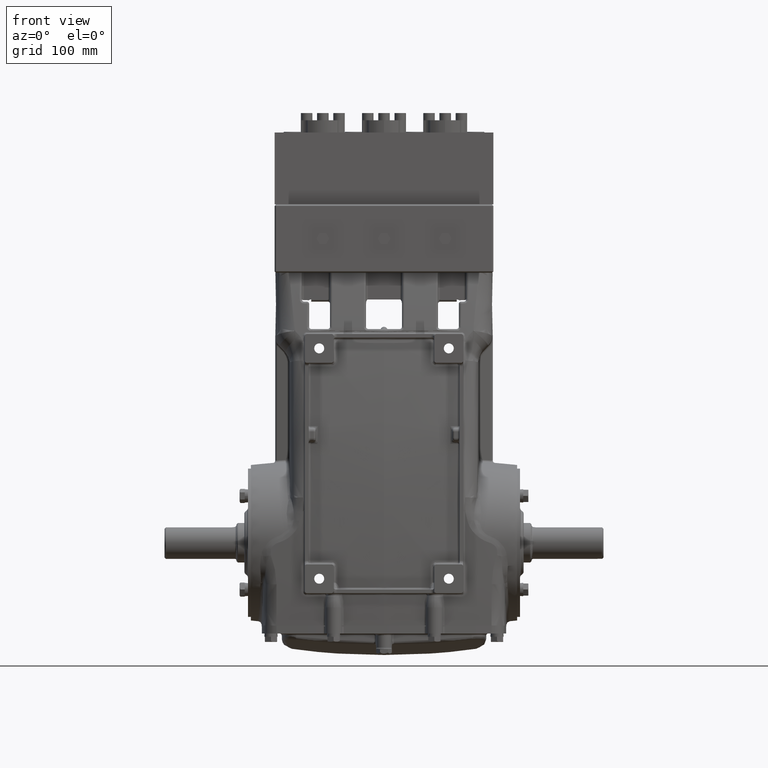
[diagram: clean part render]
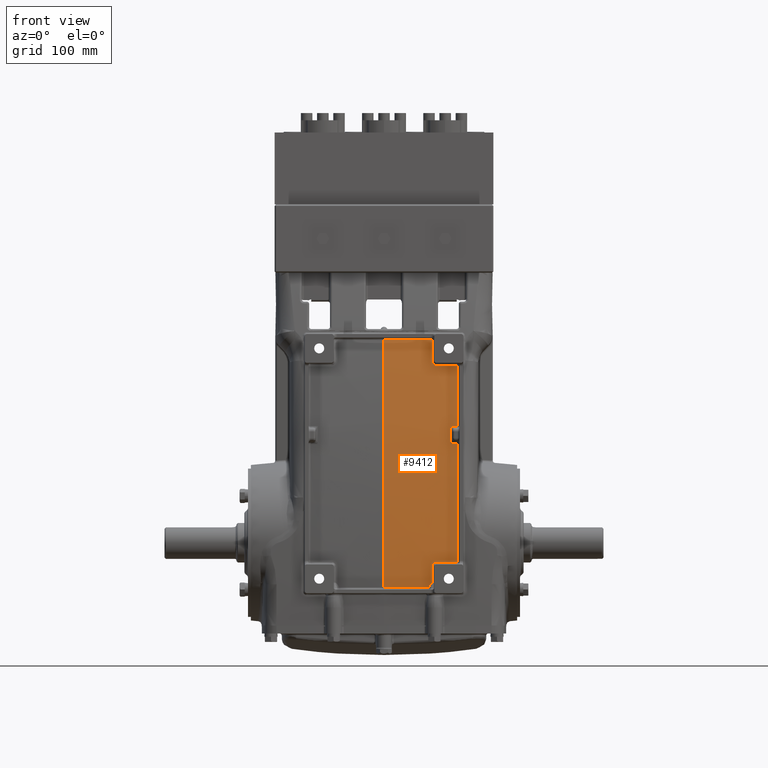
[diagram: same view with one face highlighted and labeled with its STEP entity id]
A machine part, front view. The second image highlights one B-rep face of the part: STEP entity #9412.
In plain terms, the highlighted face is a freeform B-spline surface patch.
Its self-contained STEP definition (entity closure, byte-faithful):
#142 = CARTESIAN_POINT ( 'NONE',  ( 1.338022688523618386, -4.335583564402649692, 8.422581710757242490 ) ) ;
#395 = CARTESIAN_POINT ( 'NONE',  ( 2.869235462077895704, -4.616673264439084434, -1.063256936052564772 ) ) ;
#548 = CARTESIAN_POINT ( 'NONE',  ( 6.225699120453859869, -4.603769284748519652, 1.943166230203460909 ) ) ;
#962 = CARTESIAN_POINT ( 'NONE',  ( 0.7394822644501427567, -4.598277018757071843, -4.656973560824539504 ) ) ;
#1262 = CARTESIAN_POINT ( 'NONE',  ( 1.756019466418914821, -3.688288809523445622, 11.08388144345502546 ) ) ;
#1490 = CARTESIAN_POINT ( 'NONE',  ( 4.009087921353016171, -4.326285157352316446, 4.865810634977489002 ) ) ;
#1750 = EDGE_LOOP ( 'NONE', ( #9540, #69726, #47259, #56230, #26132, #18172, #7437, #49219, #10992, #10947, #79254, #41552, #32938, #48719, #4593 ) ) ;
#2588 = CARTESIAN_POINT ( 'NONE',  ( 5.952186459334057860E-15, -4.603595011519804103, -4.592266307971328843 ) ) ;
#2925 = CARTESIAN_POINT ( 'NONE',  ( 2.500623379743942998, -4.623138100157921926, -2.342764431144773951 ) ) ;
#3254 = VERTEX_POINT ( 'NONE', #34791 ) ;
#3327 = CARTESIAN_POINT ( 'NONE',  ( 3.878103101087254867, -4.198766236469249513, 6.386215845647989831 ) ) ;
#3487 = CARTESIAN_POINT ( 'NONE',  ( 2.641241897834023522, -3.836150706242198005, 9.883250370688323017 ) ) ;
#3708 = CARTESIAN_POINT ( 'NONE',  ( 2.713445904319685908, -4.622922570484267801, -1.121384847322080436 ) ) ;
#3899 = CARTESIAN_POINT ( 'NONE',  ( 2.664278630473030596, -3.843399480132904777, 9.826262832668120950 ) ) ;
#3907 = CARTESIAN_POINT ( 'NONE',  ( 6.805403164105268132, -4.550193385702355542, 1.943166230203468459 ) ) ;
#4430 = CARTESIAN_POINT ( 'NONE',  ( 2.633454653369547316, -3.773182203592455153, 10.32429064678720287 ) ) ;
#4593 = ORIENTED_EDGE ( 'NONE', *, *, #39601, .F. ) ;
#4731 = CARTESIAN_POINT ( 'NONE',  ( 10.04577710926009182, -3.882543138254359150, -4.721680813677759936 ) ) ;
#5129 = CARTESIAN_POINT ( 'NONE',  ( 2.838203157779700447, -3.853123549072879683, 9.709538004407617606 ) ) ;
#5135 = CARTESIAN_POINT ( 'NONE',  ( 10.04577710926009182, -3.887951540411600959, -4.592266307971328843 ) ) ;
#5523 = CARTESIAN_POINT ( 'NONE',  ( 7.549915708541110604, -4.204068552081169585, -4.527559055118101305 ) ) ;
#5854 = EDGE_CURVE ( 'NONE', #32884, #3254, #16579, .T. ) ;
#5927 = CARTESIAN_POINT ( 'NONE',  ( 6.244892509886193821, -4.326280182861818702, -4.656973560824554603 ) ) ;
#6102 = EDGE_CURVE ( 'NONE', #32610, #60613, #9541, .T. ) ;
#6350 = CARTESIAN_POINT ( 'NONE',  ( 3.677514481449129846, -4.507195010719162731, -4.656973560824575031 ) ) ;
#6749 = CARTESIAN_POINT ( 'NONE',  ( 5.413657530452238298, -4.398266217006079337, -4.592266307971348382 ) ) ;
#7163 = CARTESIAN_POINT ( 'NONE',  ( 0.7399819118763637515, -4.603681021773706306, -4.527559055118107523 ) ) ;
#7437 = ORIENTED_EDGE ( 'NONE', *, *, #54142, .F. ) ;
#7477 = CARTESIAN_POINT ( 'NONE',  ( 2.633461050662142977, -3.655664824017160974, 11.08388957593362711 ) ) ;
#7913 = CARTESIAN_POINT ( 'NONE',  ( 2.586632401729381137, -4.621654160764756547, -2.220136445856032648 ) ) ;
#8325 = CARTESIAN_POINT ( 'NONE',  ( 2.595409234286698119, -4.621463490786902106, -2.209614886988585436 ) ) ;
#9412 = ADVANCED_FACE ( 'NONE', ( #67129 ), #14173, .T. ) ;
#9540 = ORIENTED_EDGE ( 'NONE', *, *, #5854, .F. ) ;
#9541 = B_SPLINE_CURVE_WITH_KNOTS ( 'NONE', 3,
 ( #73724, #41902, #72898, #67122, #3487, #29094, #54711, #34884, #3899, #54295, #42710, #10943, #11345, #36528, #22898, #73311, #61734, #48924, #74122, #5129, #16729, #80333 ),
 .UNSPECIFIED., .F., .F.,
 ( 4, 2, 2, 2, 2, 2, 2, 2, 2, 2, 4 ),
 ( 0.000000000000000000, 0.001174131697665091630, 0.001761197546497641564, 0.002348263395330191499, 0.003522395092995463540, 0.004696526790660735147, 0.005870658488326007188, 0.006457724337158620223, 0.007044790185991232391, 0.008218921883656457594, 0.009393053581321683665 ),
 .UNSPECIFIED. ) ;
#9915 = CARTESIAN_POINT ( 'NONE',  ( 2.853669760522056009, -4.617303774662096849, -1.063256940650804117 ) ) ;
#10122 = CARTESIAN_POINT ( 'NONE',  ( 7.448906861072648766, -2.639979940783716561, 14.76377952755903600 ) ) ;
#10325 = CARTESIAN_POINT ( 'NONE',  ( 3.616044454389348850, -4.301933441501103239, 5.403433961941422226 ) ) ;
#10528 = CARTESIAN_POINT ( 'NONE',  ( 8.780860917755495265, -4.055481629005462274, -4.656973560824543945 ) ) ;
#10677 = CARTESIAN_POINT ( 'NONE',  ( 2.449077410714803449, -4.623510098356429232, -2.439147228008068602 ) ) ;
#10943 = CARTESIAN_POINT ( 'NONE',  ( 2.712919804652293099, -3.849994944742353820, 9.766627177032775720 ) ) ;
#10947 = ORIENTED_EDGE ( 'NONE', *, *, #37196, .F. ) ;
#10949 = CARTESIAN_POINT ( 'NONE',  ( 7.550589100857566294, -4.198588719668536307, -4.656973560824532399 ) ) ;
#10992 = ORIENTED_EDGE ( 'NONE', *, *, #54761, .F. ) ;
#11345 = CARTESIAN_POINT ( 'NONE',  ( 2.724775699095790316, -3.850923477165796083, 9.756821694830732028 ) ) ;
#11749 = CARTESIAN_POINT ( 'NONE',  ( 9.795701932413749091, -3.667955543504810123, 8.422581710757242490 ) ) ;
#11844 = B_SPLINE_CURVE_WITH_KNOTS ( 'NONE', 3,
 ( #80742, #36130, #60929, #48547 ),
 .UNSPECIFIED., .F., .F.,
 ( 4, 4 ),
 ( 0.000000000000000000, 1.000000000000000000 ),
 .UNSPECIFIED. ) ;
#12051 = B_SPLINE_CURVE_WITH_KNOTS ( 'NONE', 3,
 ( #79758, #3327, #72337, #28935 ),
 .UNSPECIFIED., .F., .F.,
 ( 4, 4 ),
 ( 1.947840340079970283E-16, 0.009997897390823021896 ),
 .UNSPECIFIED. ) ;
#12150 = CARTESIAN_POINT ( 'NONE',  ( 0.2620379937659005343, -4.606299212598425008, -4.527559055118111964 ) ) ;
#12353 = CARTESIAN_POINT ( 'NONE',  ( 4.009067684533873965, -4.561309355163068346, -1.063256557448129414 ) ) ;
#12550 = CARTESIAN_POINT ( 'NONE',  ( 2.707814507814531257, -4.549410571035791051, -4.721680813677759048 ) ) ;
#12763 = CARTESIAN_POINT ( 'NONE',  ( 3.878095849180120069, -4.288184763484342632, 5.403435864250364595 ) ) ;
#12969 = CARTESIAN_POINT ( 'NONE',  ( 6.833064749036533492, -4.271718344480565754, -4.656973560824541281 ) ) ;
#13363 = CARTESIAN_POINT ( 'NONE',  ( 4.649375982716229316, -4.726046614213196939, 1.943166230203471567 ) ) ;
#13768 = CARTESIAN_POINT ( 'NONE',  ( 1.271245932491347874, -4.589915476206400946, -4.656973560824534175 ) ) ;
#13959 = CARTESIAN_POINT ( 'NONE',  ( 2.869235462077895704, -4.616673264439084434, -1.063256936052564772 ) ) ;
#14173 = B_SPLINE_SURFACE_WITH_KNOTS ( 'NONE', 3, 3, ( 
 ( #61740, #61330, #22494, #22903, #5135, #73318, #4731 ),
 ( #55140, #11749, #30323, #29513, #36919, #80338, #54716 ),
 ( #80736, #60506, #79929, #23329, #48931, #24127, #53895 ),
 ( #74125, #17538, #49331, #74526, #42713, #10528, #48540 ),
 ( #48114, #17948, #42312, #73729, #66719, #17140, #68349 ),
 ( #10122, #43120, #67534, #5523, #41485, #10949, #79088 ),
 ( #47706, #35315, #3907, #74939, #81137, #12969, #24542 ),
 ( #50549, #69134, #548, #19155, #50143, #5927, #31134 ),
 ( #24933, #51364, #25754, #37736, #6749, #62953, #38951 ),
 ( #56339, #75337, #13363, #38141, #44752, #32345, #18350 ),
 ( #62538, #81541, #50954, #69954, #18744, #6350, #63356 ),
 ( #57564, #37320, #31942, #76156, #43922, #19569, #12550 ),
 ( #19969, #45162, #57147, #75741, #31546, #56733, #55922 ),
 ( #70366, #142, #25342, #44341, #43520, #13768, #76553 ),
 ( #38539, #63757, #69551, #7163, #68735, #962, #26165 ),
 ( #49748, #64170, #30725, #12150, #58386, #65801, #28192 ),
 ( #21590, #77366, #76960, #46795, #2588, #57967, #33162 ) ),
 .UNSPECIFIED., .F., .F., .F.,
 ( 4, 1, 1, 1, 1, 1, 1, 1, 1, 1, 1, 1, 1, 1, 4 ),
 ( 4, 3, 4 ),
 ( 0.6416899016319266291, 0.6680709144412995126, 0.6910511929030633826, 0.7070270417424607823, 0.7380269954074184513, 0.7537315596691966935, 0.7829012457735833319, 0.7996549019161131033, 0.8403417066807266078, 0.8632468234832121334, 0.8997714546634835164, 0.9419247260028263957, 0.9467756368356592400, 0.9704551915184829181, 1.000000000000000000 ),
 ( 0.000000000000000000, 1.000000000000000000, 1.010000000000000009 ),
 .UNSPECIFIED. ) ;
#15127 = CARTESIAN_POINT ( 'NONE',  ( 2.633408173276915676, -4.626008312478406381, -1.299123915918647620 ) ) ;
#15297 = VERTEX_POINT ( 'NONE', #10325 ) ;
#15706 = EDGE_CURVE ( 'NONE', #60613, #32884, #31455, .T. ) ;
#16525 = CARTESIAN_POINT ( 'NONE',  ( 2.634936377767680415, -4.625970219346760004, -1.268135836703963459 ) ) ;
#16579 = B_SPLINE_CURVE_WITH_KNOTS ( 'NONE', 3,
 ( #24217, #47796, #41169, #66398 ),
 .UNSPECIFIED., .F., .F.,
 ( 4, 4 ),
 ( 0.000000000000000000, 0.08500869428581235565 ),
 .UNSPECIFIED. ) ;
#16729 = CARTESIAN_POINT ( 'NONE',  ( 2.853661428704624470, -3.852718271660905192, 9.708001154008286449 ) ) ;
#16966 = EDGE_CURVE ( 'NONE', #59864, #32610, #52075, .T. ) ;
#17140 = CARTESIAN_POINT ( 'NONE',  ( 8.136625690299220892, -4.133296123846644576, -4.656973560824535063 ) ) ;
#17538 = CARTESIAN_POINT ( 'NONE',  ( 8.718250130616125304, -3.810182812353625881, 8.422581710757270912 ) ) ;
#17655 = B_SPLINE_CURVE_WITH_KNOTS ( 'NONE', 3,
 ( #35926, #9915, #54094, #52879, #60711, #35104, #35520, #22696, #60307, #46690, #3708, #47913, #34280, #59491, #79291, #21485, #71897, #73111, #40480, #16525, #18159, #61539 ),
 .UNSPECIFIED., .F., .F.,
 ( 4, 2, 2, 2, 2, 2, 2, 2, 2, 2, 4 ),
 ( 0.000000000000000000, 0.001170230795047757632, 0.001755346192571658782, 0.002340461590095559933, 0.003510692385143362234, 0.004680923180191164101, 0.005851153975238966402, 0.006436269372762868854, 0.007021384770286770438, 0.008191615565334563198, 0.009361846360382355958 ),
 .UNSPECIFIED. ) ;
#17948 = CARTESIAN_POINT ( 'NONE',  ( 8.065446248077345004, -3.888393654132777488, 8.422581710757270912 ) ) ;
#18159 = CARTESIAN_POINT ( 'NONE',  ( 2.633408173057984136, -4.626020017796206751, -1.283545167597651249 ) ) ;
#18172 = ORIENTED_EDGE ( 'NONE', *, *, #28507, .T. ) ;
#18253 = CARTESIAN_POINT ( 'NONE',  ( 6.222606604880411818E-16, -3.704600613205711657, 11.08387675029587349 ) ) ;
#18350 = CARTESIAN_POINT ( 'NONE',  ( 4.639310515179054129, -4.448246577413247138, -4.721680813677765265 ) ) ;
#18744 = CARTESIAN_POINT ( 'NONE',  ( 3.677771778863302199, -4.509885198506749404, -4.592266307971359041 ) ) ;
#18857 = CARTESIAN_POINT ( 'NONE',  ( 1.633027103211280417, -4.651716990583321554, -2.439146517294747962 ) ) ;
#18979 = B_SPLINE_CURVE_WITH_KNOTS ( 'NONE', 3,
 ( #26090, #32267, #43850, #31477 ),
 .UNSPECIFIED., .F., .F.,
 ( 4, 4 ),
 ( 0.000000000000000000, 0.02506584408557438123 ),
 .UNSPECIFIED. ) ;
#19155 = CARTESIAN_POINT ( 'NONE',  ( 6.244516168916932841, -4.331721145643910198, -4.527559055118123510 ) ) ;
#19569 = CARTESIAN_POINT ( 'NONE',  ( 2.708190288782601929, -4.552099645568209674, -4.656973560824543057 ) ) ;
#19969 = CARTESIAN_POINT ( 'NONE',  ( 2.041502525274107249, -3.003381666662710892, 14.76377952755913370 ) ) ;
#20090 = CARTESIAN_POINT ( 'NONE',  ( 4.009084545783799136, -4.366297798552408516, 4.327476322675768650 ) ) ;
#20773 = EDGE_CURVE ( 'NONE', #66080, #15297, #18979, .T. ) ;
#21485 = CARTESIAN_POINT ( 'NONE',  ( 2.657685429304644131, -4.625111318126711168, -1.194604513787229871 ) ) ;
#21590 = CARTESIAN_POINT ( 'NONE',  ( -1.301789904605454270E-14, -3.031496062992124596, 14.76377952755905376 ) ) ;
#22418 = CARTESIAN_POINT ( 'NONE',  ( 4.009070229047597245, -4.534280010405843164, 1.094908286316123025 ) ) ;
#22494 = CARTESIAN_POINT ( 'NONE',  ( 10.04577710926007583, -4.161075849352311451, 1.943166230203482225 ) ) ;
#22696 = CARTESIAN_POINT ( 'NONE',  ( 2.764743968394219653, -4.620880156396577121, -1.087110397389638772 ) ) ;
#22898 = CARTESIAN_POINT ( 'NONE',  ( 2.750807953098200365, -3.852318133119502441, 9.739776564277198290 ) ) ;
#22903 = CARTESIAN_POINT ( 'NONE',  ( 10.04577710926009182, -3.890655741490221864, -4.527559055118112852 ) ) ;
#23321 = B_SPLINE_CURVE_WITH_KNOTS ( 'NONE', 3,
 ( #51076, #18857, #30837, #24239 ),
 .UNSPECIFIED., .F., .F.,
 ( 4, 4 ),
 ( 0.000000000000000000, 0.06222008268736683306 ),
 .UNSPECIFIED. ) ;
#23329 = CARTESIAN_POINT ( 'NONE',  ( 9.373807410501107995, -3.984680738766252173, -4.527559055118117293 ) ) ;
#23866 = CARTESIAN_POINT ( 'NONE',  ( 4.009067684533873965, -4.561309355163068346, -1.063256557448129414 ) ) ;
#24127 = CARTESIAN_POINT ( 'NONE',  ( 9.374243253404326737, -3.979213428622593973, -4.656973560824549274 ) ) ;
#24217 = CARTESIAN_POINT ( 'NONE',  ( 4.009132247748159017, -3.796718537745803257, 9.708013700501851417 ) ) ;
#24239 = CARTESIAN_POINT ( 'NONE',  ( 8.307133097801747765E-16, -4.665834705919339243, -2.439145830971373829 ) ) ;
#24542 = CARTESIAN_POINT ( 'NONE',  ( 6.833335941045664441, -4.268988197017606900, -4.721680813677756383 ) ) ;
#24933 = CARTESIAN_POINT ( 'NONE',  ( 5.399287095810881176, -2.827095526904189082, 14.76377952755905199 ) ) ;
#25342 = CARTESIAN_POINT ( 'NONE',  ( 1.304964888507643472, -4.865123631385777081, 1.943166230203488221 ) ) ;
#25754 = CARTESIAN_POINT ( 'NONE',  ( 5.408835557366600710, -4.671702001365406254, 1.943166230203468459 ) ) ;
#25955 = CARTESIAN_POINT ( 'NONE',  ( 3.249324048445274560, -4.601277251705913507, -1.063256823771190129 ) ) ;
#26090 = CARTESIAN_POINT ( 'NONE',  ( 3.616051193212727721, -4.212515188752981921, 6.386213672272969433 ) ) ;
#26132 = ORIENTED_EDGE ( 'NONE', *, *, #29962, .F. ) ;
#26165 = CARTESIAN_POINT ( 'NONE',  ( 0.7392324407370322037, -4.595575017248754612, -4.721680813677755495 ) ) ;
#26649 = EDGE_CURVE ( 'NONE', #59296, #43624, #26766, .T. ) ;
#26766 = B_SPLINE_CURVE_WITH_KNOTS ( 'NONE', 3,
 ( #12353, #56933, #25955, #13959 ),
 .UNSPECIFIED., .F., .F.,
 ( 4, 4 ),
 ( 1.387778780781445676E-17, 0.02898646123601396341 ),
 .UNSPECIFIED. ) ;
#27729 = CARTESIAN_POINT ( 'NONE',  ( 2.613787791955300754, -4.621037681999546010, -2.189111230793896024 ) ) ;
#28091 = CARTESIAN_POINT ( 'NONE',  ( 2.633408445068508463, -4.620541372319329376, -2.169705992555975183 ) ) ;
#28192 = CARTESIAN_POINT ( 'NONE',  ( 0.2617201313986859956, -4.598186609362562294, -4.721680813677759048 ) ) ;
#28507 = EDGE_CURVE ( 'NONE', #45440, #71453, #11844, .T. ) ;
#28786 = CARTESIAN_POINT ( 'NONE',  ( 3.629334840244932803, -3.818235481448486457, 9.708008868474776065 ) ) ;
#28935 = CARTESIAN_POINT ( 'NONE',  ( 3.616051193212727721, -4.212515188752981921, 6.386213672272969433 ) ) ;
#29094 = CARTESIAN_POINT ( 'NONE',  ( 2.645681255259437759, -3.838088212996774384, 9.868500916384387978 ) ) ;
#29513 = CARTESIAN_POINT ( 'NONE',  ( 9.813505144860167562, -3.923917834289683881, -4.527559055118114628 ) ) ;
#29962 = EDGE_CURVE ( 'NONE', #45440, #59864, #72790, .T. ) ;
#30323 = CARTESIAN_POINT ( 'NONE',  ( 9.804603538636959215, -4.195612680810072881, 1.943166230203482225 ) ) ;
#30725 = CARTESIAN_POINT ( 'NONE',  ( 0.2726334060063855813, -4.876719320460511042, 1.943166230203482892 ) ) ;
#30837 = CARTESIAN_POINT ( 'NONE',  ( 0.8165376980095109261, -4.665834705919338354, -2.439145830971372941 ) ) ;
#31134 = CARTESIAN_POINT ( 'NONE',  ( 6.245080680370824311, -4.323559701470772509, -4.721680813677770594 ) ) ;
#31455 = B_SPLINE_CURVE_WITH_KNOTS ( 'NONE', 3,
 ( #35809, #47799, #28786, #78778 ),
 .UNSPECIFIED., .F., .F.,
 ( 4, 4 ),
 ( 0.000000000000000000, 0.02898692912293929919 ),
 .UNSPECIFIED. ) ;
#31477 = CARTESIAN_POINT ( 'NONE',  ( 3.616044454389348850, -4.301933441501103239, 5.403433961941422226 ) ) ;
#31546 = CARTESIAN_POINT ( 'NONE',  ( 1.924953776098369485, -4.578667073187570047, -4.592266307971317296 ) ) ;
#31942 = CARTESIAN_POINT ( 'NONE',  ( 2.746519947525800642, -4.826385247874843465, 1.943166230203528411 ) ) ;
#32267 = CARTESIAN_POINT ( 'NONE',  ( 3.616048795176231678, -4.244373793230554526, 6.058810424978555709 ) ) ;
#32345 = CARTESIAN_POINT ( 'NONE',  ( 4.639408238164851817, -4.450943665149169171, -4.656973560824549274 ) ) ;
#32401 = EDGE_CURVE ( 'NONE', #15297, #35612, #78463, .T. ) ;
#32610 = VERTEX_POINT ( 'NONE', #46405 ) ;
#32884 = VERTEX_POINT ( 'NONE', #77686 ) ;
#32938 = ORIENTED_EDGE ( 'NONE', *, *, #32401, .F. ) ;
#33098 = CARTESIAN_POINT ( 'NONE',  ( 2.545477370009458618, -4.622452418897994519, -2.274529108363807062 ) ) ;
#33162 = CARTESIAN_POINT ( 'NONE',  ( 6.054976045372554899E-15, -4.598186609362562294, -4.721680813677759936 ) ) ;
#33387 = CARTESIAN_POINT ( 'NONE',  ( 2.633408177355273327, -4.625790264749591429, -1.589326262183604399 ) ) ;
#33678 = CARTESIAN_POINT ( 'NONE',  ( 3.747079594199890451, -4.295241205347695157, 5.403434887655193641 ) ) ;
#34168 = CARTESIAN_POINT ( 'NONE',  ( 8.307133097801747765E-16, -4.665834705919339243, -2.439145830971373829 ) ) ;
#34280 = CARTESIAN_POINT ( 'NONE',  ( 2.681924243328158042, -4.624166295150564210, -1.154984678794387598 ) ) ;
#34791 = CARTESIAN_POINT ( 'NONE',  ( 4.009099260313161217, -4.191345367742774108, 6.386217024925107566 ) ) ;
#34884 = CARTESIAN_POINT ( 'NONE',  ( 2.657090287576963750, -3.841747970683058622, 9.839791426524097773 ) ) ;
#35104 = CARTESIAN_POINT ( 'NONE',  ( 2.793509117844862999, -4.619727269208481424, -1.075614104504940327 ) ) ;
#35315 = CARTESIAN_POINT ( 'NONE',  ( 6.778283963192261119, -4.023856148172574976, 8.422581710757208739 ) ) ;
#35520 = CARTESIAN_POINT ( 'NONE',  ( 2.786150692338191348, -4.620022506536527906, -1.078245028240014669 ) ) ;
#35612 = VERTEX_POINT ( 'NONE', #77528 ) ;
#35809 = CARTESIAN_POINT ( 'NONE',  ( 2.869281754821064290, -3.852085522503557069, 9.708001295117043128 ) ) ;
#35926 = CARTESIAN_POINT ( 'NONE',  ( 2.869235462077895704, -4.616673264439084434, -1.063256936052564772 ) ) ;
#36130 = CARTESIAN_POINT ( 'NONE',  ( 2.138533143211187579E-14, -4.413031083295456014, 6.613240948986014445 ) ) ;
#36528 = CARTESIAN_POINT ( 'NONE',  ( 2.744094817158744259, -3.852008386760988223, 9.743824653417735959 ) ) ;
#36919 = CARTESIAN_POINT ( 'NONE',  ( 9.813594160922399112, -3.921200885824479787, -4.592266307971329731 ) ) ;
#37196 = EDGE_CURVE ( 'NONE', #43624, #68212, #17655, .T. ) ;
#37320 = CARTESIAN_POINT ( 'NONE',  ( 2.784098044332857125, -4.295940717290989141, 8.422581710757331308 ) ) ;
#37736 = CARTESIAN_POINT ( 'NONE',  ( 5.413609788144460033, -4.400973501999735582, -4.527559055118132392 ) ) ;
#38141 = CARTESIAN_POINT ( 'NONE',  ( 4.639603684136446304, -4.456337840621012347, -4.527559055118117293 ) ) ;
#38539 = CARTESIAN_POINT ( 'NONE',  ( 0.8149290258095023276, -3.028218001076291355, 14.76377952755897383 ) ) ;
#38951 = CARTESIAN_POINT ( 'NONE',  ( 5.413753015067796603, -4.392851647018765959, -4.721680813677779476 ) ) ;
#39301 = CARTESIAN_POINT ( 'NONE',  ( 2.623396351544327043, -4.620802285514722385, -2.179126252549555609 ) ) ;
#39601 = EDGE_CURVE ( 'NONE', #3254, #66080, #12051, .T. ) ;
#40480 = CARTESIAN_POINT ( 'NONE',  ( 2.641027938767021688, -4.625748410727640980, -1.237653653290637035 ) ) ;
#41169 = CARTESIAN_POINT ( 'NONE',  ( 4.009108318091917589, -4.083358441636023350, 7.495968248677195689 ) ) ;
#41485 = CARTESIAN_POINT ( 'NONE',  ( 7.550252404699338449, -4.201328635874852502, -4.592266307971317296 ) ) ;
#41552 = ORIENTED_EDGE ( 'NONE', *, *, #48219, .F. ) ;
#41902 = CARTESIAN_POINT ( 'NONE',  ( 2.633451561824138754, -3.829986750973441545, 9.928396051215916174 ) ) ;
#42312 = CARTESIAN_POINT ( 'NONE',  ( 8.100683595711938523, -4.413265680477349129, 1.943166230203502876 ) ) ;
#42710 = CARTESIAN_POINT ( 'NONE',  ( 2.691205871054139109, -3.847737429745157645, 9.788464922674490865 ) ) ;
#42713 = CARTESIAN_POINT ( 'NONE',  ( 8.780550963363717543, -4.058224466466718638, -4.592266307971327954 ) ) ;
#43120 = CARTESIAN_POINT ( 'NONE',  ( 7.482576476895471451, -3.952699809518920748, 8.422581710757233608 ) ) ;
#43424 = CARTESIAN_POINT ( 'NONE',  ( 0.8780478353440256400, -3.704600613205713433, 11.08387675029587172 ) ) ;
#43520 = CARTESIAN_POINT ( 'NONE',  ( 1.271576510491507550, -4.592613595374825941, -4.592266307971319073 ) ) ;
#43624 = VERTEX_POINT ( 'NONE', #395 ) ;
#43850 = CARTESIAN_POINT ( 'NONE',  ( 3.616046548859178866, -4.274180461905598527, 5.731210759690506862 ) ) ;
#43922 = CARTESIAN_POINT ( 'NONE',  ( 2.708566069750672600, -4.554788720100628296, -4.592266307971327066 ) ) ;
#44341 = CARTESIAN_POINT ( 'NONE',  ( 1.271907088491667448, -4.595311714543250936, -4.527559055118103082 ) ) ;
#44752 = CARTESIAN_POINT ( 'NONE',  ( 4.639505961150648616, -4.453640752885090315, -4.592266307971333283 ) ) ;
#45162 = CARTESIAN_POINT ( 'NONE',  ( 2.002782010597783824, -4.320731672086859376, 8.422581710757299334 ) ) ;
#45440 = VERTEX_POINT ( 'NONE', #46626 ) ;
#46405 = CARTESIAN_POINT ( 'NONE',  ( 2.633451682630481017, -3.827767035953573593, 9.943866171489569084 ) ) ;
#46626 = CARTESIAN_POINT ( 'NONE',  ( 6.222606604880411818E-16, -3.704600613205711657, 11.08387675029587349 ) ) ;
#46690 = CARTESIAN_POINT ( 'NONE',  ( 2.725582099047808349, -4.622441117694928714, -1.111434826511108476 ) ) ;
#46795 = CARTESIAN_POINT ( 'NONE',  ( 5.900791666314808552E-15, -4.606299212598425008, -4.527559055118112852 ) ) ;
#47259 = ORIENTED_EDGE ( 'NONE', *, *, #6102, .F. ) ;
#47706 = CARTESIAN_POINT ( 'NONE',  ( 6.751164762279253218, -2.710159405101540742, 14.76377952755900225 ) ) ;
#47796 = CARTESIAN_POINT ( 'NONE',  ( 4.009119313203882484, -3.951827351199129978, 8.603249513709112506 ) ) ;
#47799 = CARTESIAN_POINT ( 'NONE',  ( 3.249376453830433942, -3.836688622418527483, 9.708004728764223046 ) ) ;
#47913 = CARTESIAN_POINT ( 'NONE',  ( 2.691688546195931675, -4.623782299950007335, -1.143123225144427435 ) ) ;
#48114 = CARTESIAN_POINT ( 'NONE',  ( 8.030208900442749709, -2.576162122246953956, 14.76377952755909284 ) ) ;
#48219 = EDGE_CURVE ( 'NONE', #35612, #59296, #54356, .T. ) ;
#48540 = CARTESIAN_POINT ( 'NONE',  ( 8.781170872147274764, -4.052738791544205910, -4.721680813677760824 ) ) ;
#48547 = CARTESIAN_POINT ( 'NONE',  ( 8.307133097801747765E-16, -4.665834705919339243, -2.439145830971373829 ) ) ;
#48719 = ORIENTED_EDGE ( 'NONE', *, *, #20773, .F. ) ;
#48924 = CARTESIAN_POINT ( 'NONE',  ( 2.792751531202446902, -3.853427452750522342, 9.720233864941249635 ) ) ;
#48931 = CARTESIAN_POINT ( 'NONE',  ( 9.374025331952717366, -3.981947083694422851, -4.592266307971333283 ) ) ;
#49172 = VERTEX_POINT ( 'NONE', #63802 ) ;
#49219 = ORIENTED_EDGE ( 'NONE', *, *, #78237, .F. ) ;
#49331 = CARTESIAN_POINT ( 'NONE',  ( 8.749245569794030786, -4.335251050053626543, 1.943166230203497991 ) ) ;
#49748 = CARTESIAN_POINT ( 'NONE',  ( 0.2938242304873521227, -3.031496062992124596, 14.76377952755905376 ) ) ;
#50143 = CARTESIAN_POINT ( 'NONE',  ( 6.244704339401563331, -4.329000664252864006, -4.592266307971338613 ) ) ;
#50549 = CARTESIAN_POINT ( 'NONE',  ( 6.188065023527709485, -2.761802089765181822, 14.76377952755900935 ) ) ;
#50954 = CARTESIAN_POINT ( 'NONE',  ( 3.703758817694700944, -4.781594165052963419, 1.943166230203458023 ) ) ;
#51076 = CARTESIAN_POINT ( 'NONE',  ( 2.449077410714803449, -4.623510098356429232, -2.439147228008068602 ) ) ;
#51364 = CARTESIAN_POINT ( 'NONE',  ( 5.404061326588741387, -4.143078516905423392, 8.422581710757231832 ) ) ;
#52075 = B_SPLINE_CURVE_WITH_KNOTS ( 'NONE', 3,
 ( #74242, #60626, #4430, #55249 ),
 .UNSPECIFIED., .F., .F.,
 ( 4, 4 ),
 ( 0.000000000000000000, 0.02928519298519093733 ),
 .UNSPECIFIED. ) ;
#52309 = CARTESIAN_POINT ( 'NONE',  ( 4.009078708508510225, -4.435224281480957487, 3.250428491501163197 ) ) ;
#52797 = CARTESIAN_POINT ( 'NONE',  ( 2.633408173276915676, -4.626008312478406381, -1.299123915918647620 ) ) ;
#52879 = CARTESIAN_POINT ( 'NONE',  ( 2.815778172814598523, -4.618832082285478258, -1.069268495893053617 ) ) ;
#52921 = CARTESIAN_POINT ( 'NONE',  ( 2.473840061928060496, -4.623398243447898182, -2.390294904614319815 ) ) ;
#53323 = CARTESIAN_POINT ( 'NONE',  ( 2.633408445068508463, -4.620541372319329376, -2.169705992555975183 ) ) ;
#53895 = CARTESIAN_POINT ( 'NONE',  ( 9.374461174855936108, -3.976479773550764651, -4.721680813677765265 ) ) ;
#54094 = CARTESIAN_POINT ( 'NONE',  ( 2.838363699798844841, -4.617922095803651317, -1.064783195785242498 ) ) ;
#54142 = EDGE_CURVE ( 'NONE', #49172, #71453, #23321, .T. ) ;
#54295 = CARTESIAN_POINT ( 'NONE',  ( 2.681283402009699390, -3.846391426601914798, 9.800633888478397893 ) ) ;
#54356 = B_SPLINE_CURVE_WITH_KNOTS ( 'NONE', 3,
 ( #60851, #1490, #20090, #52309, #73246, #22418, #58505, #72835 ),
 .UNSPECIFIED., .F., .F.,
 ( 4, 2, 2, 4 ),
 ( 0.1100862934247376357, 0.1512149560370461554, 0.1923436186493546751, 0.2746009438739717146 ),
 .UNSPECIFIED. ) ;
#54711 = CARTESIAN_POINT ( 'NONE',  ( 2.648289797643023302, -3.839036234659721103, 9.861161471962155645 ) ) ;
#54716 = CARTESIAN_POINT ( 'NONE',  ( 9.813772193046863990, -3.915766988894072043, -4.721680813677761712 ) ) ;
#54761 = EDGE_CURVE ( 'NONE', #68212, #56813, #75396, .T. ) ;
#55140 = CARTESIAN_POINT ( 'NONE',  ( 9.786800326190538968, -2.352938900658293697, 14.76377952755905554 ) ) ;
#55249 = CARTESIAN_POINT ( 'NONE',  ( 2.633451682630481017, -3.827767035953573593, 9.943866171489569084 ) ) ;
#55922 = CARTESIAN_POINT ( 'NONE',  ( 1.924179365804842945, -4.573279843508714748, -4.721680813677750166 ) ) ;
#56230 = ORIENTED_EDGE ( 'NONE', *, *, #16966, .F. ) ;
#56339 = CARTESIAN_POINT ( 'NONE',  ( 4.668920579875790011, -2.879400688205008496, 14.76377952755902889 ) ) ;
#56733 = CARTESIAN_POINT ( 'NONE',  ( 1.924566570951606215, -4.575973458348141953, -4.656973560824534175 ) ) ;
#56813 = VERTEX_POINT ( 'NONE', #28091 ) ;
#56933 = CARTESIAN_POINT ( 'NONE',  ( 3.629276353741744732, -4.582824952503464999, -1.063256691878862847 ) ) ;
#57147 = CARTESIAN_POINT ( 'NONE',  ( 1.964061495921458844, -4.850722171969754193, 1.943166230203517308 ) ) ;
#57564 = CARTESIAN_POINT ( 'NONE',  ( 2.821676141139911831, -2.978136681165881150, 14.76377952755918699 ) ) ;
#57967 = CARTESIAN_POINT ( 'NONE',  ( 6.003581252353306379E-15, -4.600890810441183199, -4.656973560824543945 ) ) ;
#58386 = CARTESIAN_POINT ( 'NONE',  ( 0.2619320396434957066, -4.603595011519804103, -4.592266307971327954 ) ) ;
#58505 = CARTESIAN_POINT ( 'NONE',  ( 4.009068041970367702, -4.558888634782253035, 0.01623320812878846497 ) ) ;
#58597 = CARTESIAN_POINT ( 'NONE',  ( 2.633408267973377459, -4.623967929607251115, -1.879523794570239437 ) ) ;
#58731 = CARTESIAN_POINT ( 'NONE',  ( 2.561217022510075658, -4.622174225298794070, -2.252299614874098577 ) ) ;
#58900 = CARTESIAN_POINT ( 'NONE',  ( 4.009091750255389108, -4.280763994658505212, 5.403436896546486956 ) ) ;
#59296 = VERTEX_POINT ( 'NONE', #23866 ) ;
#59491 = CARTESIAN_POINT ( 'NONE',  ( 2.668988596127266799, -4.624672092610369489, -1.174300191169862284 ) ) ;
#59864 = VERTEX_POINT ( 'NONE', #79884 ) ;
#60307 = CARTESIAN_POINT ( 'NONE',  ( 2.751205790464350098, -4.621420892464555230, -1.094344180641083630 ) ) ;
#60506 = CARTESIAN_POINT ( 'NONE',  ( 9.330223120179205409, -3.732059769306459884, 8.422581710757210516 ) ) ;
#60613 = VERTEX_POINT ( 'NONE', #79374 ) ;
#60626 = CARTESIAN_POINT ( 'NONE',  ( 2.633457776029218156, -3.715813800803541511, 10.70430508477513953 ) ) ;
#60711 = CARTESIAN_POINT ( 'NONE',  ( 2.808312386648814218, -4.619132474409107125, -1.071132298595862675 ) ) ;
#60851 = CARTESIAN_POINT ( 'NONE',  ( 4.009091750255389108, -4.280763994658505212, 5.403436896546486956 ) ) ;
#60929 = CARTESIAN_POINT ( 'NONE',  ( 2.505936219533671878E-14, -4.734812052058077647, 2.088789099802080607 ) ) ;
#61330 = CARTESIAN_POINT ( 'NONE',  ( 10.04577710926006162, -3.632143973388746616, 8.422581710757240714 ) ) ;
#61539 = CARTESIAN_POINT ( 'NONE',  ( 2.633408173276915676, -4.626008312478406381, -1.299123915918647620 ) ) ;
#61734 = CARTESIAN_POINT ( 'NONE',  ( 2.771421394848513575, -3.853013347860668514, 9.729127848689499203 ) ) ;
#61740 = CARTESIAN_POINT ( 'NONE',  ( 10.04577710926004208, -2.315852591883929890, 14.76377952755905376 ) ) ;
#62538 = CARTESIAN_POINT ( 'NONE',  ( 3.755218300529151954, -2.933568249377660919, 14.76377952755903955 ) ) ;
#62953 = CARTESIAN_POINT ( 'NONE',  ( 5.413705272760017451, -4.395558932012422204, -4.656973560824563485 ) ) ;
#63356 = CARTESIAN_POINT ( 'NONE',  ( 3.677257184034957049, -4.504504822931576058, -4.721680813677791022 ) ) ;
#63757 = CARTESIAN_POINT ( 'NONE',  ( 0.7899466544984574679, -4.344729339611482999, 8.422581710757190976 ) ) ;
#63802 = CARTESIAN_POINT ( 'NONE',  ( 2.449077410714803449, -4.623510098356429232, -2.439147228008068602 ) ) ;
#64170 = CARTESIAN_POINT ( 'NONE',  ( 0.2832288182468694071, -4.347787444496944431, 8.422581710757240714 ) ) ;
#64402 = CARTESIAN_POINT ( 'NONE',  ( 2.633408445068508463, -4.620541372319329376, -2.169705992555975183 ) ) ;
#65801 = CARTESIAN_POINT ( 'NONE',  ( 0.2618260855210908233, -4.600890810441183199, -4.656973560824543945 ) ) ;
#66080 = VERTEX_POINT ( 'NONE', #76563 ) ;
#66398 = CARTESIAN_POINT ( 'NONE',  ( 4.009099260313161217, -4.191345367742774108, 6.386217024925107566 ) ) ;
#66719 = CARTESIAN_POINT ( 'NONE',  ( 8.136273316822876467, -4.136040923421456128, -4.592266307971319073 ) ) ;
#67122 = CARTESIAN_POINT ( 'NONE',  ( 2.639396831441881641, -3.835158132531951924, 9.890685908161072959 ) ) ;
#67129 = FACE_OUTER_BOUND ( 'NONE', #1750, .T. ) ;
#67534 = CARTESIAN_POINT ( 'NONE',  ( 7.516246092718290583, -4.478060172712870823, 1.943166230203484224 ) ) ;
#68178 = B_SPLINE_CURVE_WITH_KNOTS ( 'NONE', 3,
 ( #53323, #39301, #27729, #8325, #7913, #58731, #33098, #2925, #52921, #10677 ),
 .UNSPECIFIED., .F., .F.,
 ( 4, 2, 2, 2, 4 ),
 ( 0.04411098432046615253, 0.04513956298825744923, 0.04616814165604874592, 0.04822529899163137401, 0.05233961366279665794 ),
 .UNSPECIFIED. ) ;
#68212 = VERTEX_POINT ( 'NONE', #15127 ) ;
#68349 = CARTESIAN_POINT ( 'NONE',  ( 8.136978063775567094, -4.130551324271833913, -4.721680813677751054 ) ) ;
#68735 = CARTESIAN_POINT ( 'NONE',  ( 0.7397320881632531986, -4.600979020265389074, -4.592266307971323513 ) ) ;
#69134 = CARTESIAN_POINT ( 'NONE',  ( 6.206882071990785121, -4.076465440027476461, 8.422581710757208739 ) ) ;
#69551 = CARTESIAN_POINT ( 'NONE',  ( 0.7649642831874112758, -4.873881172605420531, 1.943166230203459577 ) ) ;
#69726 = ORIENTED_EDGE ( 'NONE', *, *, #15706, .F. ) ;
#69954 = CARTESIAN_POINT ( 'NONE',  ( 3.678029076277474552, -4.512575386294336077, -4.527559055118143050 ) ) ;
#70366 = CARTESIAN_POINT ( 'NONE',  ( 1.371080488539591968, -3.018683991878269079, 14.76377952755904843 ) ) ;
#71453 = VERTEX_POINT ( 'NONE', #34168 ) ;
#71681 = CARTESIAN_POINT ( 'NONE',  ( 3.616044454389348850, -4.301933441501103239, 5.403433961941422226 ) ) ;
#71897 = CARTESIAN_POINT ( 'NONE',  ( 2.654394645030112354, -4.625238377442803639, -1.201553123469140116 ) ) ;
#72337 = CARTESIAN_POINT ( 'NONE',  ( 3.747086590047644439, -4.205822820303535714, 6.386214730073086265 ) ) ;
#72790 = B_SPLINE_CURVE_WITH_KNOTS ( 'NONE', 3,
 ( #18253, #43424, #1262, #7477 ),
 .UNSPECIFIED., .F., .F.,
 ( 4, 4 ),
 ( 0.000000000000000000, 0.06690407850567986481 ),
 .UNSPECIFIED. ) ;
#72835 = CARTESIAN_POINT ( 'NONE',  ( 4.009067684533873965, -4.561309355163068346, -1.063256557448129414 ) ) ;
#72898 = CARTESIAN_POINT ( 'NONE',  ( 2.634958507792321214, -3.832110682459297202, 9.913170577341473333 ) ) ;
#73111 = CARTESIAN_POINT ( 'NONE',  ( 2.645560017094310101, -4.625577472127104350, -1.222825218996533625 ) ) ;
#73246 = CARTESIAN_POINT ( 'NONE',  ( 4.009076246432647928, -4.464142590308505021, 2.711700979093898400 ) ) ;
#73311 = CARTESIAN_POINT ( 'NONE',  ( 2.764453734349016312, -3.852819460961609543, 9.732441120458709349 ) ) ;
#73318 = CARTESIAN_POINT ( 'NONE',  ( 10.04577710926009182, -3.885247339332980054, -4.656973560824543945 ) ) ;
#73724 = CARTESIAN_POINT ( 'NONE',  ( 2.633451682630481017, -3.827767035953573593, 9.943866171489569084 ) ) ;
#73729 = CARTESIAN_POINT ( 'NONE',  ( 8.135920943346530265, -4.138785722996266792, -4.527559055118102194 ) ) ;
#74122 = CARTESIAN_POINT ( 'NONE',  ( 2.807609554183104539, -3.853480852725197803, 9.715674560606947452 ) ) ;
#74125 = CARTESIAN_POINT ( 'NONE',  ( 8.687254691438219822, -2.497755069112371995, 14.76377952755909462 ) ) ;
#74242 = CARTESIAN_POINT ( 'NONE',  ( 2.633461050662142977, -3.655664824017160974, 11.08388957593362711 ) ) ;
#74526 = CARTESIAN_POINT ( 'NONE',  ( 8.780241008971938044, -4.060967303927975003, -4.527559055118111964 ) ) ;
#74939 = CARTESIAN_POINT ( 'NONE',  ( 6.832522365018273369, -4.277178639406483462, -4.527559055118109299 ) ) ;
#75337 = CARTESIAN_POINT ( 'NONE',  ( 4.659148281296010552, -4.196403403979729774, 8.422581710757222950 ) ) ;
#75396 = B_SPLINE_CURVE_WITH_KNOTS ( 'NONE', 3,
 ( #52797, #33387, #58597, #64402 ),
 .UNSPECIFIED., .F., .F.,
 ( 4, 4 ),
 ( 0.000000000000000000, 0.02211340015105577039 ),
 .UNSPECIFIED. ) ;
#75741 = CARTESIAN_POINT ( 'NONE',  ( 1.925340981245132754, -4.581360688026997252, -4.527559055118101305 ) ) ;
#76156 = CARTESIAN_POINT ( 'NONE',  ( 2.708941850718743272, -4.557477794633046031, -4.527559055118110187 ) ) ;
#76553 = CARTESIAN_POINT ( 'NONE',  ( 1.270915354491187976, -4.587217357037975951, -4.721680813677750166 ) ) ;
#76563 = CARTESIAN_POINT ( 'NONE',  ( 3.616051193212727721, -4.212515188752981921, 6.386213672272969433 ) ) ;
#76960 = CARTESIAN_POINT ( 'NONE',  ( 7.613123643899153952E-16, -4.876719320460511042, 1.943166230203482225 ) ) ;
#77366 = CARTESIAN_POINT ( 'NONE',  ( -5.544917873066535615E-15, -4.347787444496944431, 8.422581710757240714 ) ) ;
#77528 = CARTESIAN_POINT ( 'NONE',  ( 4.009091750255389108, -4.280763994658505212, 5.403436896546486956 ) ) ;
#77686 = CARTESIAN_POINT ( 'NONE',  ( 4.009132247748159017, -3.796718537745803257, 9.708013700501851417 ) ) ;
#78237 = EDGE_CURVE ( 'NONE', #56813, #49172, #68178, .T. ) ;
#78463 = B_SPLINE_CURVE_WITH_KNOTS ( 'NONE', 3,
 ( #71681, #33678, #12763, #58900 ),
 .UNSPECIFIED., .F., .F.,
 ( 4, 4 ),
 ( 6.938893903907228378E-17, 0.009997877322231155453 ),
 .UNSPECIFIED. ) ;
#78778 = CARTESIAN_POINT ( 'NONE',  ( 4.009132247748159017, -3.796718537745803257, 9.708013700501851417 ) ) ;
#79088 = CARTESIAN_POINT ( 'NONE',  ( 7.550925797015794139, -4.195848803462219223, -4.721680813677748390 ) ) ;
#79254 = ORIENTED_EDGE ( 'NONE', *, *, #26649, .F. ) ;
#79291 = CARTESIAN_POINT ( 'NONE',  ( 2.664969661778525900, -4.624828674874356338, -1.180995928298864461 ) ) ;
#79374 = CARTESIAN_POINT ( 'NONE',  ( 2.869281754821064290, -3.852085522503557069, 9.708001295117043128 ) ) ;
#79758 = CARTESIAN_POINT ( 'NONE',  ( 4.009099260313161217, -4.191345367742774108, 6.386217024925107566 ) ) ;
#79884 = CARTESIAN_POINT ( 'NONE',  ( 2.633461050662142977, -3.655664824017160974, 11.08388957593362711 ) ) ;
#79929 = CARTESIAN_POINT ( 'NONE',  ( 9.352015265340156702, -4.258046245949182129, 1.943166230203464906 ) ) ;
#80333 = CARTESIAN_POINT ( 'NONE',  ( 2.869281754821064290, -3.852085522503557069, 9.708001295117043128 ) ) ;
#80338 = CARTESIAN_POINT ( 'NONE',  ( 9.813683176984632439, -3.918483937359276137, -4.656973560824545721 ) ) ;
#80736 = CARTESIAN_POINT ( 'NONE',  ( 9.308430975018255893, -2.418713787122484415, 14.76377952755900935 ) ) ;
#80742 = CARTESIAN_POINT ( 'NONE',  ( 6.222606604880411818E-16, -3.704600613205711657, 11.08387675029587349 ) ) ;
#81137 = CARTESIAN_POINT ( 'NONE',  ( 6.832793557027403430, -4.274448491943524608, -4.592266307971325290 ) ) ;
#81541 = CARTESIAN_POINT ( 'NONE',  ( 3.729488559111926893, -4.251260959985939003, 8.422581710757222950 ) ) ;